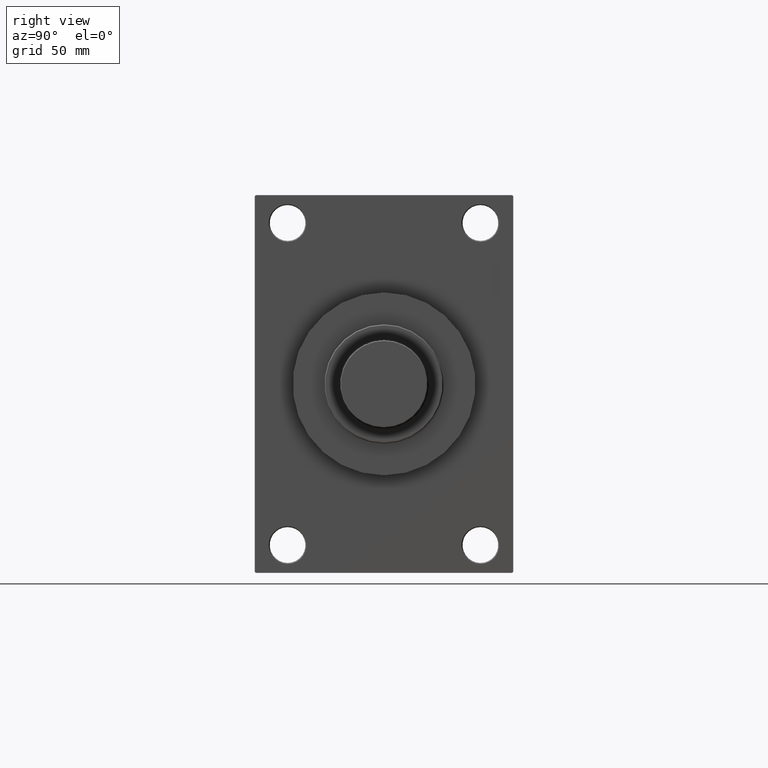
[diagram: clean part render]
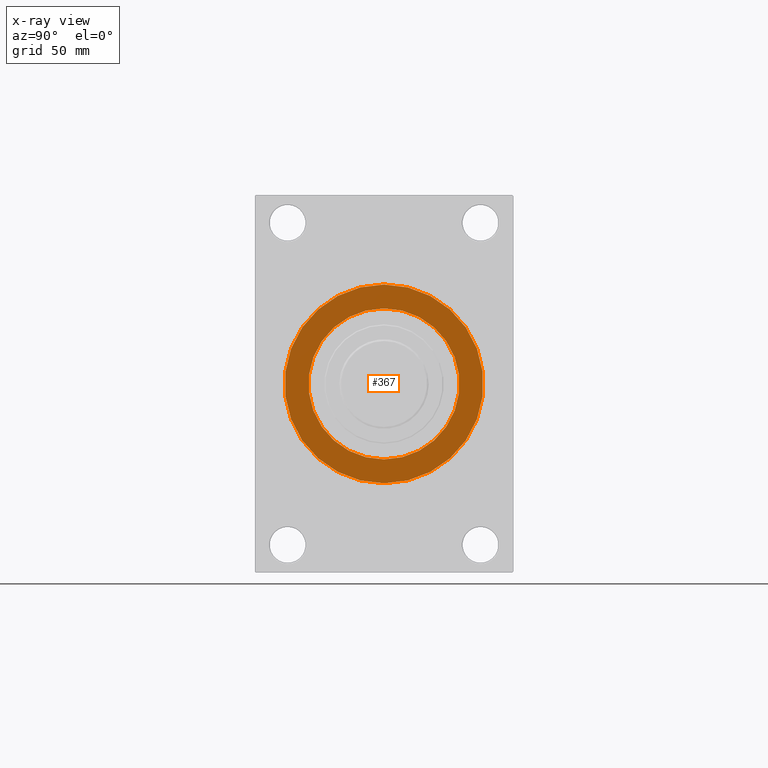
[diagram: x-ray — body ghosted, one internal face saturated and labeled with its STEP entity id]
A machine part, right view, then the same camera in x-ray: the body is ghosted and one INTERNAL B-rep face — a face not visible from any outside direction — is saturated and labeled: STEP entity #367.
In plain terms, the highlighted planar face has unit normal (-1, 0, 0).
Its self-contained STEP definition (entity closure, byte-faithful):
#94 = CARTESIAN_POINT ( 'NONE',  ( 115.9999999999999858, 3.521148781771555838E-15, -50.00000000000000000 ) ) ;
#367 = ADVANCED_FACE ( 'NONE', ( #12680, #46700 ), #39388, .T. ) ;
#1021 = AXIS2_PLACEMENT_3D ( 'NONE', #43174, #21757, #28350 ) ;
#2062 = ORIENTED_EDGE ( 'NONE', *, *, #41963, .F. ) ;
#2327 = EDGE_CURVE ( 'NONE', #7746, #18360, #37864, .T. ) ;
#3422 = DIRECTION ( 'NONE',  ( 0.000000000000000000, 0.000000000000000000, 1.000000000000000000 ) ) ;
#4169 = DIRECTION ( 'NONE',  ( -1.000000000000000000, 0.000000000000000000, -0.000000000000000000 ) ) ;
#6070 = DIRECTION ( 'NONE',  ( -0.000000000000000000, 0.000000000000000000, 1.000000000000000000 ) ) ;
#7746 = VERTEX_POINT ( 'NONE', #10914 ) ;
#7936 = CARTESIAN_POINT ( 'NONE',  ( 115.9999999999999858, 0.000000000000000000, -38.00000000000000000 ) ) ;
#10914 = CARTESIAN_POINT ( 'NONE',  ( 115.9999999999999858, 4.653657836759941941E-15, 38.00000000000000000 ) ) ;
#12680 = FACE_BOUND ( 'NONE', #35838, .T. ) ;
#14617 = AXIS2_PLACEMENT_3D ( 'NONE', #33593, #14874, #3422 ) ;
#14874 = DIRECTION ( 'NONE',  ( -1.000000000000000000, 0.000000000000000000, -0.000000000000000000 ) ) ;
#15375 = ORIENTED_EDGE ( 'NONE', *, *, #38765, .F. ) ;
#15380 = CARTESIAN_POINT ( 'NONE',  ( 115.9999999999999858, 0.000000000000000000, 0.000000000000000000 ) ) ;
#18360 = VERTEX_POINT ( 'NONE', #7936 ) ;
#19972 = CARTESIAN_POINT ( 'NONE',  ( 115.9999999999999858, 0.000000000000000000, 0.000000000000000000 ) ) ;
#20370 = ORIENTED_EDGE ( 'NONE', *, *, #2327, .F. ) ;
#21757 = DIRECTION ( 'NONE',  ( 1.000000000000000000, 0.000000000000000000, 0.000000000000000000 ) ) ;
#21979 = CIRCLE ( 'NONE', #1021, 50.00000000000000000 ) ;
#23279 = VERTEX_POINT ( 'NONE', #40667 ) ;
#23582 = CIRCLE ( 'NONE', #26664, 50.00000000000000000 ) ;
#25088 = EDGE_CURVE ( 'NONE', #23279, #29930, #23582, .T. ) ;
#26664 = AXIS2_PLACEMENT_3D ( 'NONE', #46454, #46691, #28453 ) ;
#28350 = DIRECTION ( 'NONE',  ( 0.000000000000000000, 0.000000000000000000, -1.000000000000000000 ) ) ;
#28453 = DIRECTION ( 'NONE',  ( 0.000000000000000000, 0.000000000000000000, -1.000000000000000000 ) ) ;
#29930 = VERTEX_POINT ( 'NONE', #94 ) ;
#30114 = AXIS2_PLACEMENT_3D ( 'NONE', #15380, #4169, #30197 ) ;
#30197 = DIRECTION ( 'NONE',  ( 0.000000000000000000, 0.000000000000000000, 1.000000000000000000 ) ) ;
#30845 = AXIS2_PLACEMENT_3D ( 'NONE', #19972, #35271, #6070 ) ;
#33310 = EDGE_LOOP ( 'NONE', ( #41799, #2062 ) ) ;
#33593 = CARTESIAN_POINT ( 'NONE',  ( 115.9999999999999858, 0.000000000000000000, 0.000000000000000000 ) ) ;
#35271 = DIRECTION ( 'NONE',  ( -1.000000000000000000, 0.000000000000000000, -0.000000000000000000 ) ) ;
#35838 = EDGE_LOOP ( 'NONE', ( #15375, #20370 ) ) ;
#37864 = CIRCLE ( 'NONE', #14617, 38.00000000000000000 ) ;
#38765 = EDGE_CURVE ( 'NONE', #18360, #7746, #44878, .T. ) ;
#39388 = PLANE ( 'NONE',  #30845 ) ;
#40667 = CARTESIAN_POINT ( 'NONE',  ( 115.9999999999999858, -2.602085213965210642E-15, 50.00000000000000000 ) ) ;
#41799 = ORIENTED_EDGE ( 'NONE', *, *, #25088, .F. ) ;
#41963 = EDGE_CURVE ( 'NONE', #29930, #23279, #21979, .T. ) ;
#43174 = CARTESIAN_POINT ( 'NONE',  ( 115.9999999999999858, -2.602085213965210642E-15, 0.000000000000000000 ) ) ;
#44878 = CIRCLE ( 'NONE', #30114, 38.00000000000000000 ) ;
#46454 = CARTESIAN_POINT ( 'NONE',  ( 115.9999999999999858, -2.602085213965210642E-15, 0.000000000000000000 ) ) ;
#46691 = DIRECTION ( 'NONE',  ( 1.000000000000000000, 0.000000000000000000, 0.000000000000000000 ) ) ;
#46700 = FACE_OUTER_BOUND ( 'NONE', #33310, .T. ) ;